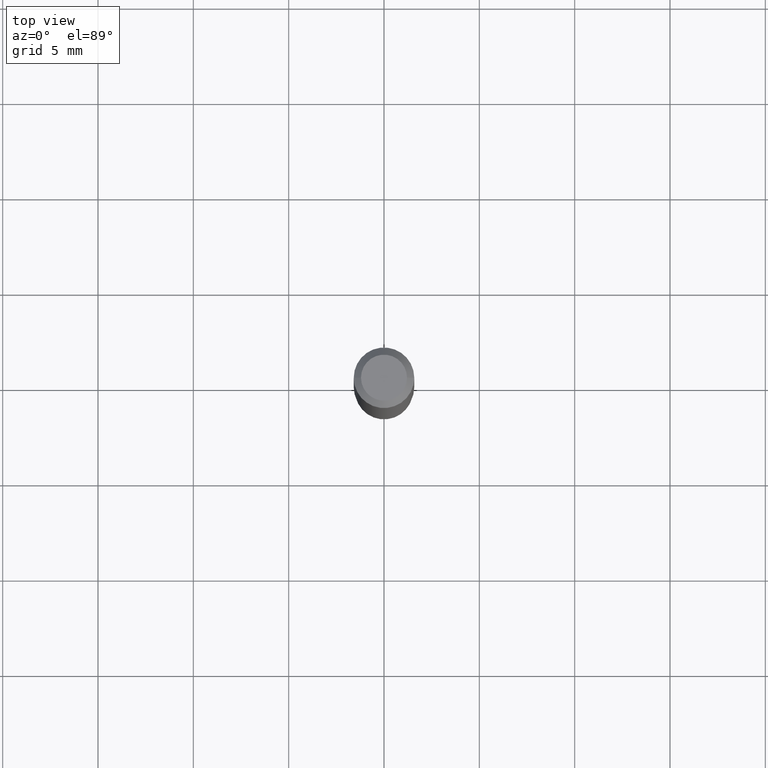
[diagram: clean part render]
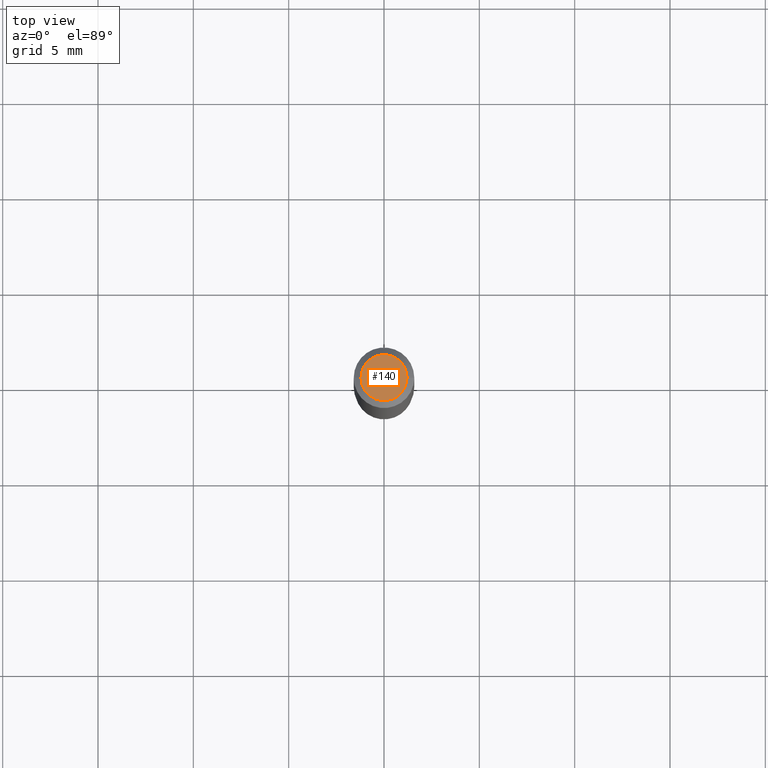
[diagram: same view with one face highlighted and labeled with its STEP entity id]
A machine part, top view. The second image highlights one B-rep face of the part: STEP entity #140.
In plain terms, the highlighted planar face has unit normal (0, -0, -1).
Its self-contained STEP definition (entity closure, byte-faithful):
#11 = CARTESIAN_POINT ( 'NONE',  ( 0.04750000000000000749, -4.035134999187568762E-16, 2.731847993664288856E-16 ) ) ;
#15 = EDGE_LOOP ( 'NONE', ( #265, #498 ) ) ;
#47 = CIRCLE ( 'NONE', #333, 0.04750000000000000749 ) ;
#86 = CIRCLE ( 'NONE', #393, 0.04750000000000000749 ) ;
#88 = DIRECTION ( 'NONE',  ( 2.438088387897960049E-29, -3.491481338843145188E-15, -1.000000000000000000 ) ) ;
#95 = DIRECTION ( 'NONE',  ( -2.445468806185136597E-29, 3.491481338843145583E-15, 1.000000000000000000 ) ) ;
#140 = ADVANCED_FACE ( 'NONE', ( #295 ), #420, .F. ) ;
#164 = EDGE_CURVE ( 'NONE', #275, #219, #86, .T. ) ;
#183 = DIRECTION ( 'NONE',  ( -2.445468806185136597E-29, 3.491481338843145583E-15, 1.000000000000000000 ) ) ;
#206 = CARTESIAN_POINT ( 'NONE',  ( -0.04750000000000000749, 3.578768372314221353E-16, 2.731847993664239060E-16 ) ) ;
#215 = CARTESIAN_POINT ( 'NONE',  ( 3.316907271900976589E-16, 0.04750000000000000749, -2.925296391183627249E-17 ) ) ;
#216 = DIRECTION ( 'NONE',  ( -1.000000000000000000, 6.982962677686265922E-15, -4.876176775795935793E-29 ) ) ;
#219 = VERTEX_POINT ( 'NONE', #11 ) ;
#265 = ORIENTED_EDGE ( 'NONE', *, *, #164, .T. ) ;
#269 = AXIS2_PLACEMENT_3D ( 'NONE', #215, #88, #216 ) ;
#275 = VERTEX_POINT ( 'NONE', #206 ) ;
#295 = FACE_OUTER_BOUND ( 'NONE', #15, .T. ) ;
#327 = DIRECTION ( 'NONE',  ( 1.000000000000000000, -6.982962677686266711E-15, 4.852736867747365086E-29 ) ) ;
#333 = AXIS2_PLACEMENT_3D ( 'NONE', #388, #183, #346 ) ;
#346 = DIRECTION ( 'NONE',  ( 1.000000000000000000, -6.982962677686266711E-15, 4.852736867747365086E-29 ) ) ;
#388 = CARTESIAN_POINT ( 'NONE',  ( -6.680649051745406845E-45, 9.538196290434862081E-31, 2.731847993664263218E-16 ) ) ;
#393 = AXIS2_PLACEMENT_3D ( 'NONE', #410, #95, #327 ) ;
#394 = EDGE_CURVE ( 'NONE', #219, #275, #47, .T. ) ;
#410 = CARTESIAN_POINT ( 'NONE',  ( -6.680649051745406845E-45, 9.538196290434862081E-31, 2.731847993664263218E-16 ) ) ;
#420 = PLANE ( 'NONE',  #269 ) ;
#498 = ORIENTED_EDGE ( 'NONE', *, *, #394, .T. ) ;